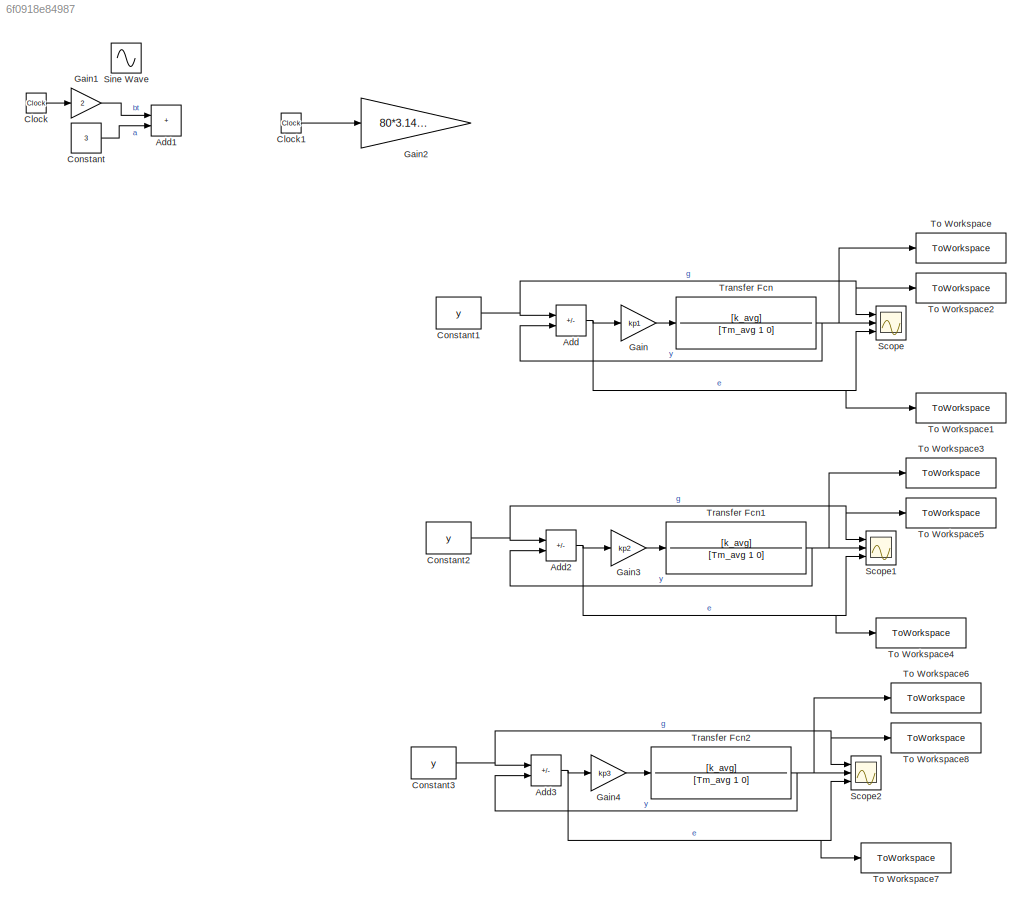
MODEL slx_6f0918e84987
KIND model
CONFIG AbsTol = auto
CONFIG EnableMultiTasking = off
CONFIG FixedStep = 0.001
CONFIG MaxStep = auto
CONFIG MinStep = auto
CONFIG RelTol = 1e-3
CONFIG SampleTimeConstraint = Unconstrained
CONFIG SolverName = FixedStepAuto
CONFIG StartTime = 0.0
CONFIG StopTime = 10
BLOCK [Sum] Add
  IconShape = rectangular
  Inputs = +-
  Ports = [2, 1]
BLOCK [Sum] Add1
  IconShape = rectangular
  Ports = [2, 1]
BLOCK [Sum] Add2
  IconShape = rectangular
  Inputs = +-
  Ports = [2, 1]
BLOCK [Sum] Add3
  IconShape = rectangular
  Inputs = +-
  Ports = [2, 1]
BLOCK [Clock] Clock
BLOCK [Clock] Clock1
BLOCK [Constant] Constant
  Value = 3
BLOCK [Constant] Constant1
  SampleTime = -1
  Value = y
BLOCK [Constant] Constant2
  SampleTime = -1
  Value = y
BLOCK [Constant] Constant3
  SampleTime = -1
  Value = y
BLOCK [Gain] Gain
  Gain = kp1
BLOCK [Gain] Gain1
  Gain = 2
BLOCK [Gain] Gain2
  Gain = 80*3.1415/180
BLOCK [Gain] Gain3
  Gain = kp2
BLOCK [Gain] Gain4
  Gain = kp3
BLOCK [Scope] Scope
  Floating = off
  NumInputPorts = 3
  Ports = [3]
  ScopeSpecificationString = Simulink.scopes.TimeScopeBlockCfg('CurrentConfiguration', extmgr.ConfigurationSet(extmgr.Configuration('Core','General UI',true),extmgr.Configuration('Core','Source UI',true),extmgr.Configuration('Sources','WiredSimulink',true),extmgr.Configuration('Visuals','Time Domain',true,'SerializedDisplays',{struct('MinYLimReal','-17.45278','MaxYLimReal','157.075','YLabelReal','','MinYLimMag','0.00000','Max...<+1402ch>
BLOCK [Scope] Scope1
  Floating = off
  NumInputPorts = 3
  Ports = [3]
  ScopeSpecificationString = Simulink.scopes.TimeScopeBlockCfg('CurrentConfiguration', extmgr.ConfigurationSet(extmgr.Configuration('Core','General UI',true),extmgr.Configuration('Core','Source UI',true),extmgr.Configuration('Sources','WiredSimulink',true,'DataLoggingVariableName','ScopeData1'),extmgr.Configuration('Visuals','Time Domain',true,'SerializedDisplays',{struct('MinYLimReal','-17.45278','MaxYLimReal','157.075','YLa...<+1442ch>
BLOCK [Scope] Scope2
  Floating = off
  NumInputPorts = 3
  Ports = [3]
  ScopeSpecificationString = Simulink.scopes.TimeScopeBlockCfg('CurrentConfiguration', extmgr.ConfigurationSet(extmgr.Configuration('Core','General UI',true),extmgr.Configuration('Core','Source UI',true),extmgr.Configuration('Sources','WiredSimulink',true,'DataLoggingVariableName','ScopeData2'),extmgr.Configuration('Visuals','Time Domain',true,'SerializedDisplays',{struct('MinYLimReal','-17.45278','MaxYLimReal','157.075','YLa...<+1442ch>
BLOCK [Sin] Sine Wave
  Amplitude = 2
  Phase = 2
  Ports = [0, 1]
  SampleTime = 0
BLOCK [ToWorkspace] To Workspace
  FixptAsFi = on
  MaxDataPoints = inf
  Ports = [1]
  SampleTime = -1
  SaveFormat = Timeseries
  VariableName = y
BLOCK [ToWorkspace] To Workspace1
  FixptAsFi = on
  MaxDataPoints = inf
  Ports = [1]
  SampleTime = -1
  SaveFormat = Timeseries
  VariableName = e
BLOCK [ToWorkspace] To Workspace2
  FixptAsFi = on
  MaxDataPoints = inf
  Ports = [1]
  SampleTime = -1
  SaveFormat = Timeseries
  VariableName = g
BLOCK [ToWorkspace] To Workspace3
  FixptAsFi = on
  MaxDataPoints = inf
  Ports = [1]
  SampleTime = -1
  SaveFormat = Timeseries
  VariableName = y1
BLOCK [ToWorkspace] To Workspace4
  FixptAsFi = on
  MaxDataPoints = inf
  Ports = [1]
  SampleTime = -1
  SaveFormat = Timeseries
  VariableName = e1
BLOCK [ToWorkspace] To Workspace5
  FixptAsFi = on
  MaxDataPoints = inf
  Ports = [1]
  SampleTime = -1
  SaveFormat = Timeseries
  VariableName = g1
BLOCK [ToWorkspace] To Workspace6
  FixptAsFi = on
  MaxDataPoints = inf
  Ports = [1]
  SampleTime = -1
  SaveFormat = Timeseries
  VariableName = y2
BLOCK [ToWorkspace] To Workspace7
  FixptAsFi = on
  MaxDataPoints = inf
  Ports = [1]
  SampleTime = -1
  SaveFormat = Timeseries
  VariableName = e2
BLOCK [ToWorkspace] To Workspace8
  FixptAsFi = on
  MaxDataPoints = inf
  Ports = [1]
  SampleTime = -1
  SaveFormat = Timeseries
  VariableName = g2
BLOCK [TransferFcn] Transfer Fcn
  Denominator = [Tm_avg 1 0]
  Numerator = [k_avg]
BLOCK [TransferFcn] Transfer Fcn1
  Denominator = [Tm_avg 1 0]
  Numerator = [k_avg]
BLOCK [TransferFcn] Transfer Fcn2
  Denominator = [Tm_avg 1 0]
  Numerator = [k_avg]
NET Add2:1 -> Gain3:1, Scope1:3, To Workspace4:1
NET Add3:1 -> Gain4:1, Scope2:3, To Workspace7:1
NET Add:1 -> Gain:1, Scope:3, To Workspace1:1
LINE Clock1:1 -> Gain2:1
LINE Clock:1 -> Gain1:1
NET Constant1:1 -> Add:1, Scope:1, To Workspace2:1
NET Constant2:1 -> Add2:1, Scope1:1, To Workspace5:1
NET Constant3:1 -> Add3:1, Scope2:1, To Workspace8:1
LINE Constant:1 -> Add1:2
LINE Gain1:1 -> Add1:1
LINE Gain3:1 -> Transfer Fcn1:1
LINE Gain4:1 -> Transfer Fcn2:1
LINE Gain:1 -> Transfer Fcn:1
NET Transfer Fcn1:1 -> Add2:2, Scope1:2, To Workspace3:1
NET Transfer Fcn2:1 -> Add3:2, Scope2:2, To Workspace6:1
NET Transfer Fcn:1 -> Add:2, Scope:2, To Workspace:1
note: NET lines group one-source signal fan-out (src -> all destinations, sorted); 1:1 wires keep LINE
